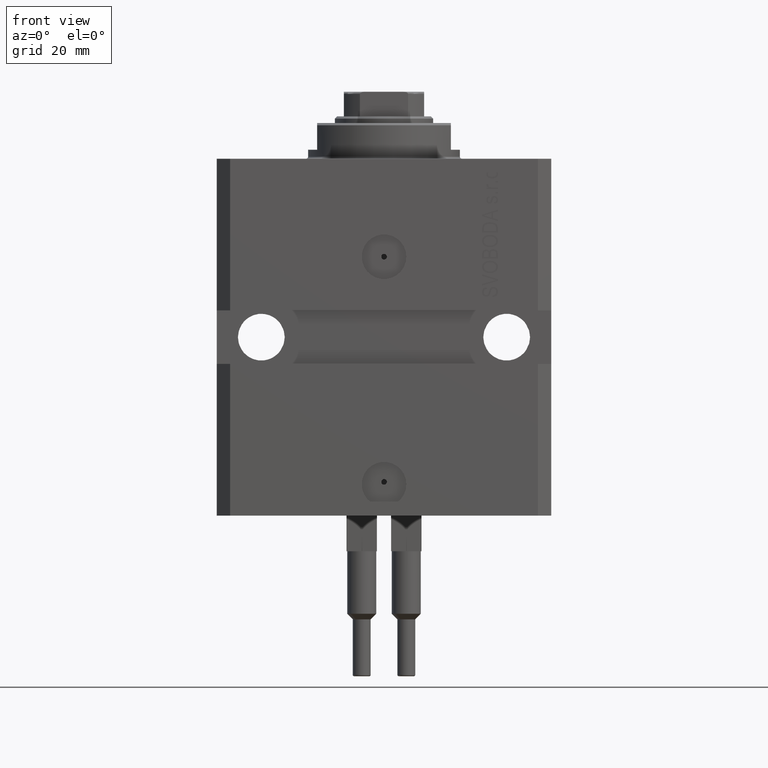
[diagram: clean part render]
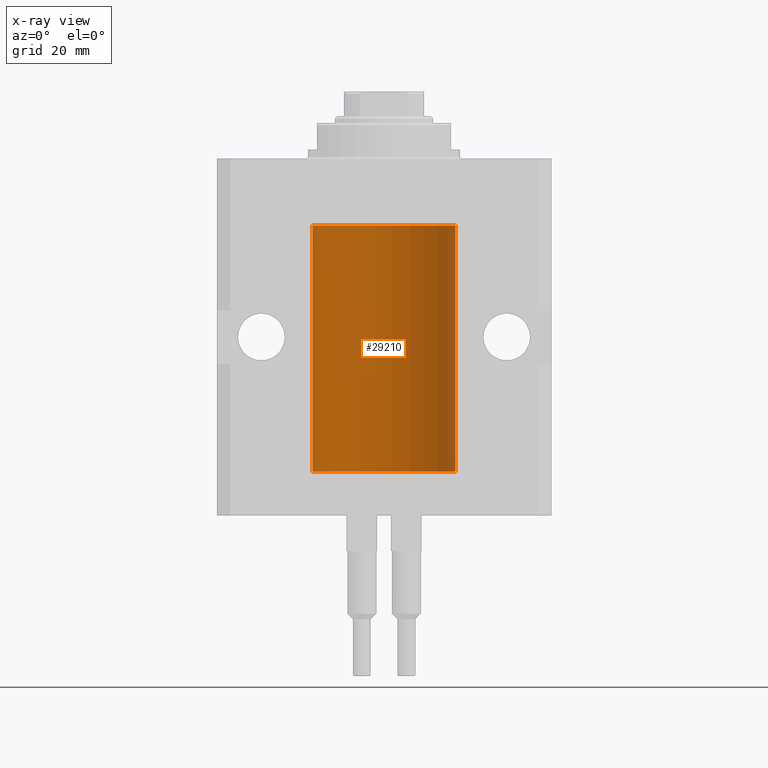
[diagram: x-ray — body ghosted, one internal face saturated and labeled with its STEP entity id]
A machine part, front view, then the same camera in x-ray: the body is ghosted and one INTERNAL B-rep face — a face not visible from any outside direction — is saturated and labeled: STEP entity #29210.
In plain terms, the highlighted cylindrical surface (partial cylindrical patch) has radius 16 mm, axis along (0, 0, 1).
Its self-contained STEP definition (entity closure, byte-faithful):
#416 = AXIS2_PLACEMENT_3D ( 'NONE', #20151, #16549, #8854 ) ;
#491 = CARTESIAN_POINT ( 'NONE',  ( -15.99548640841683067, 0.3843705577988847377, -21.50046628527008608 ) ) ;
#720 = CARTESIAN_POINT ( 'NONE',  ( -15.99228023727724413, 0.5003781296993413674, -22.38347829554236057 ) ) ;
#1875 = ORIENTED_EDGE ( 'NONE', *, *, #35120, .T. ) ;
#2101 = CYLINDRICAL_SURFACE ( 'NONE', #416, 16.00000000000000000 ) ;
#3977 = VERTEX_POINT ( 'NONE', #19303 ) ;
#4971 = DIRECTION ( 'NONE',  ( 1.000000000000000000, 0.000000000000000000, 0.000000000000000000 ) ) ;
#5079 = VECTOR ( 'NONE', #29850, 1000.000000000000000 ) ;
#5455 = LINE ( 'NONE', #35318, #10496 ) ;
#5745 = DIRECTION ( 'NONE',  ( 0.000000000000000000, 0.000000000000000000, 1.000000000000000000 ) ) ;
#5982 = CARTESIAN_POINT ( 'NONE',  ( -16.00000000000000000, -9.346608026143465119E-15, -67.37500000000000000 ) ) ;
#7241 = CARTESIAN_POINT ( 'NONE',  ( -16.00000000000013145, 3.685127046438747128E-13, -68.62500000000343903 ) ) ;
#8178 = CARTESIAN_POINT ( 'NONE',  ( -15.99070426498502862, 0.5462220647145645813, -68.31460064614141459 ) ) ;
#8179 = CARTESIAN_POINT ( 'NONE',  ( -16.00000000000000711, 0.08259886010189904093, -21.37500000000000000 ) ) ;
#8403 = LINE ( 'NONE', #23086, #5079 ) ;
#8526 = LINE ( 'NONE', #11902, #22895 ) ;
#8854 = DIRECTION ( 'NONE',  ( 1.000000000000000000, 0.000000000000000000, 0.000000000000000000 ) ) ;
#10496 = VECTOR ( 'NONE', #34369, 1000.000000000000000 ) ;
#11310 = CARTESIAN_POINT ( 'NONE',  ( -15.99070653155268040, 0.5573233280232966491, -67.67348148680505915 ) ) ;
#11902 = CARTESIAN_POINT ( 'NONE',  ( -16.00000000000000000, 1.959434878635765131E-15, -70.09999999999999432 ) ) ;
#12011 = DIRECTION ( 'NONE',  ( -0.000000000000000000, -0.000000000000000000, 1.000000000000000000 ) ) ;
#12292 = CIRCLE ( 'NONE', #35382, 16.00000000000000000 ) ;
#13049 = EDGE_CURVE ( 'NONE', #18766, #3977, #12292, .T. ) ;
#13287 = VERTEX_POINT ( 'NONE', #43271 ) ;
#13662 = CARTESIAN_POINT ( 'NONE',  ( 0.000000000000000000, 0.000000000000000000, -70.09999999999999432 ) ) ;
#14596 = VECTOR ( 'NONE', #12011, 1000.000000000000000 ) ;
#14925 = CARTESIAN_POINT ( 'NONE',  ( -15.98779057735153586, 0.6249419637998054888, -67.83670145863507628 ) ) ;
#15261 = CARTESIAN_POINT ( 'NONE',  ( -16.00000000000013145, 3.685127046438747128E-13, -68.62500000000343903 ) ) ;
#15396 = CARTESIAN_POINT ( 'NONE',  ( -15.99711699979842017, 0.3253759916140657737, -22.55856151623175521 ) ) ;
#15850 = ORIENTED_EDGE ( 'NONE', *, *, #30833, .T. ) ;
#16549 = DIRECTION ( 'NONE',  ( -0.000000000000000000, -0.000000000000000000, 1.000000000000000000 ) ) ;
#18538 = CARTESIAN_POINT ( 'NONE',  ( -15.99934216141748244, 0.1636497843296417787, -21.39126528029306229 ) ) ;
#18766 = VERTEX_POINT ( 'NONE', #22171 ) ;
#18781 = CARTESIAN_POINT ( 'NONE',  ( -16.00000000000000000, -9.346608026143465119E-15, -67.37500000000000000 ) ) ;
#18782 = CARTESIAN_POINT ( 'NONE',  ( -16.00000000000000000, 1.643679961284177128E-16, -21.37499999999999645 ) ) ;
#19010 = CARTESIAN_POINT ( 'NONE',  ( -15.98844267028591482, 0.6088369347963316081, -22.16324735024328518 ) ) ;
#19303 = CARTESIAN_POINT ( 'NONE',  ( -16.00000000000000000, 1.959434878635765131E-15, -70.09999999999999432 ) ) ;
#20151 = CARTESIAN_POINT ( 'NONE',  ( 0.000000000000000000, 0.000000000000000000, -70.09999999999999432 ) ) ;
#20180 = CARTESIAN_POINT ( 'NONE',  ( -16.00000000000000000, 1.959434878635765131E-15, -70.09999999999999432 ) ) ;
#20214 = CARTESIAN_POINT ( 'NONE',  ( -16.00000000000000000, 1.643679961284177128E-16, -21.37499999999999645 ) ) ;
#20872 = ORIENTED_EDGE ( 'NONE', *, *, #34644, .F. ) ;
#21483 = B_SPLINE_CURVE_WITH_KNOTS ( 'NONE', 3,
 ( #18781, #41203, #29857, #29397, #26252, #11310, #14925, #25780, #44122, #8178, #29630, #26008, #22855, #7241 ),
 .UNSPECIFIED., .F., .F.,
 ( 4, 2, 2, 2, 2, 2, 4 ),
 ( 9.902737362640428303E-19, 0.0002442776652680895785, 0.0004885553305361781812, 0.0009771106610723552782, 0.001221388326340464752, 0.001465665991608574008, 0.001954221322144763465 ),
 .UNSPECIFIED. ) ;
#22171 = CARTESIAN_POINT ( 'NONE',  ( 16.00000000000000000, 0.000000000000000000, -70.09999999999999432 ) ) ;
#22627 = CARTESIAN_POINT ( 'NONE',  ( -15.98779057735153941, 0.6249419637998100407, -21.83670145863507273 ) ) ;
#22855 = CARTESIAN_POINT ( 'NONE',  ( -15.99999999999998934, 0.1631714642025807183, -68.62499999999984368 ) ) ;
#22895 = VECTOR ( 'NONE', #40846, 1000.000000000000000 ) ;
#23086 = CARTESIAN_POINT ( 'NONE',  ( 16.00000000000000000, 0.000000000000000000, -70.09999999999999432 ) ) ;
#24857 = ORIENTED_EDGE ( 'NONE', *, *, #38243, .T. ) ;
#25780 = CARTESIAN_POINT ( 'NONE',  ( -15.98778717651346426, 0.6250289588122136530, -68.08131585687053189 ) ) ;
#26008 = CARTESIAN_POINT ( 'NONE',  ( -15.99711699979840951, 0.3253759916140645525, -68.55856151623176231 ) ) ;
#26065 = AXIS2_PLACEMENT_3D ( 'NONE', #45688, #45451, #4971 ) ;
#26252 = CARTESIAN_POINT ( 'NONE',  ( -15.99548640841682712, 0.3843705577988820732, -67.50046628527007897 ) ) ;
#26754 = VERTEX_POINT ( 'NONE', #42498 ) ;
#27170 = FACE_OUTER_BOUND ( 'NONE', #41927, .T. ) ;
#27407 = VERTEX_POINT ( 'NONE', #5982 ) ;
#27905 = DIRECTION ( 'NONE',  ( 1.000000000000000000, 0.000000000000000000, 0.000000000000000000 ) ) ;
#28866 = VERTEX_POINT ( 'NONE', #20214 ) ;
#29210 = ADVANCED_FACE ( 'NONE', ( #27170 ), #2101, .F. ) ;
#29397 = CARTESIAN_POINT ( 'NONE',  ( -15.99707730059171240, 0.3150375992092334654, -67.45402333202571299 ) ) ;
#29630 = CARTESIAN_POINT ( 'NONE',  ( -15.99228023727723702, 0.5003781296993395911, -68.38347829554236057 ) ) ;
#29818 = VERTEX_POINT ( 'NONE', #33687 ) ;
#29850 = DIRECTION ( 'NONE',  ( -0.000000000000000000, -0.000000000000000000, 1.000000000000000000 ) ) ;
#29857 = CARTESIAN_POINT ( 'NONE',  ( -15.99934216141748244, 0.1636497843296345067, -67.39126528029308361 ) ) ;
#30099 = CARTESIAN_POINT ( 'NONE',  ( -16.00000000000000000, 0.1631714642025800244, -22.62499999999985789 ) ) ;
#30285 = ORIENTED_EDGE ( 'NONE', *, *, #32083, .F. ) ;
#30833 = EDGE_CURVE ( 'NONE', #18766, #26754, #8403, .T. ) ;
#31038 = LINE ( 'NONE', #20180, #14596 ) ;
#31697 = EDGE_CURVE ( 'NONE', #28866, #13287, #38433, .T. ) ;
#32083 = EDGE_CURVE ( 'NONE', #28866, #29818, #5455, .T. ) ;
#33513 = ORIENTED_EDGE ( 'NONE', *, *, #44918, .F. ) ;
#33687 = CARTESIAN_POINT ( 'NONE',  ( -16.00000000000000000, 1.959434878635765131E-15, -15.00000000000000000 ) ) ;
#33712 = CARTESIAN_POINT ( 'NONE',  ( -15.99070426498503217, 0.5462220647145618058, -22.31460064614143590 ) ) ;
#34369 = DIRECTION ( 'NONE',  ( -0.000000000000000000, -0.000000000000000000, 1.000000000000000000 ) ) ;
#34644 = EDGE_CURVE ( 'NONE', #27407, #13287, #8526, .T. ) ;
#35120 = EDGE_CURVE ( 'NONE', #27407, #44219, #21483, .T. ) ;
#35318 = CARTESIAN_POINT ( 'NONE',  ( -16.00000000000000000, 1.959434878635765131E-15, -70.09999999999999432 ) ) ;
#35382 = AXIS2_PLACEMENT_3D ( 'NONE', #13662, #5745, #27905 ) ;
#36072 = CIRCLE ( 'NONE', #26065, 16.00000000000000000 ) ;
#37346 = CARTESIAN_POINT ( 'NONE',  ( -15.98778717651346071, 0.6250289588122140971, -22.08131585687052478 ) ) ;
#38243 = EDGE_CURVE ( 'NONE', #26754, #29818, #36072, .T. ) ;
#38433 = B_SPLINE_CURVE_WITH_KNOTS ( 'NONE', 3,
 ( #18782, #8179, #18538, #44354, #491, #40970, #22627, #37346, #19010, #33712, #720, #15396, #30099, #44827 ),
 .UNSPECIFIED., .F., .F.,
 ( 4, 2, 2, 2, 2, 2, 4 ),
 ( 1.597328219370744179E-19, 0.0002442776652680942405, 0.0004885553305361882643, 0.0009771106610723839011, 0.001221388326340481665, 0.001465665991608579430, 0.001954221322144767369 ),
 .UNSPECIFIED. ) ;
#40846 = DIRECTION ( 'NONE',  ( -0.000000000000000000, -0.000000000000000000, 1.000000000000000000 ) ) ;
#40970 = CARTESIAN_POINT ( 'NONE',  ( -15.99070653155267685, 0.5573233280232986475, -21.67348148680506625 ) ) ;
#41203 = CARTESIAN_POINT ( 'NONE',  ( -16.00000000000000711, 0.08259886010189028405, -67.37500000000001421 ) ) ;
#41927 = EDGE_LOOP ( 'NONE', ( #33513, #46951, #15850, #24857, #30285, #44170, #20872, #1875 ) ) ;
#42498 = CARTESIAN_POINT ( 'NONE',  ( 16.00000000000000000, 0.000000000000000000, -15.00000000000000000 ) ) ;
#43271 = CARTESIAN_POINT ( 'NONE',  ( -16.00000000000013145, 3.685127034031037939E-13, -22.62500000000341771 ) ) ;
#44122 = CARTESIAN_POINT ( 'NONE',  ( -15.98844267028591126, 0.6088369347963314970, -68.16324735024328163 ) ) ;
#44170 = ORIENTED_EDGE ( 'NONE', *, *, #31697, .T. ) ;
#44219 = VERTEX_POINT ( 'NONE', #15261 ) ;
#44354 = CARTESIAN_POINT ( 'NONE',  ( -15.99707730059171240, 0.3150375992092407373, -21.45402333202571654 ) ) ;
#44827 = CARTESIAN_POINT ( 'NONE',  ( -16.00000000000013145, 3.685127034031037939E-13, -22.62500000000341771 ) ) ;
#44918 = EDGE_CURVE ( 'NONE', #3977, #44219, #31038, .T. ) ;
#45451 = DIRECTION ( 'NONE',  ( 0.000000000000000000, 0.000000000000000000, 1.000000000000000000 ) ) ;
#45688 = CARTESIAN_POINT ( 'NONE',  ( 0.000000000000000000, 0.000000000000000000, -15.00000000000000000 ) ) ;
#46951 = ORIENTED_EDGE ( 'NONE', *, *, #13049, .F. ) ;